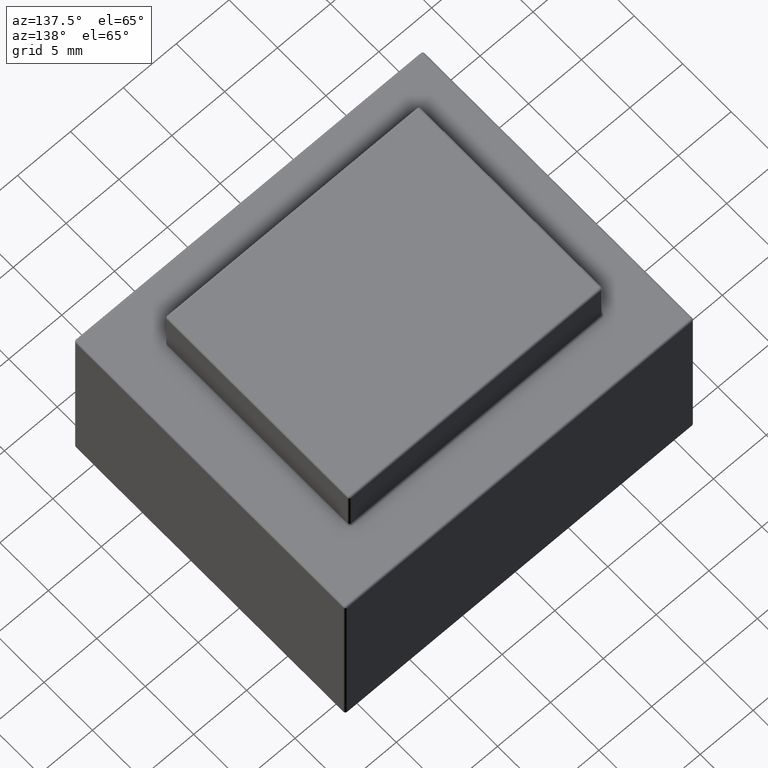
[diagram: clean part render]
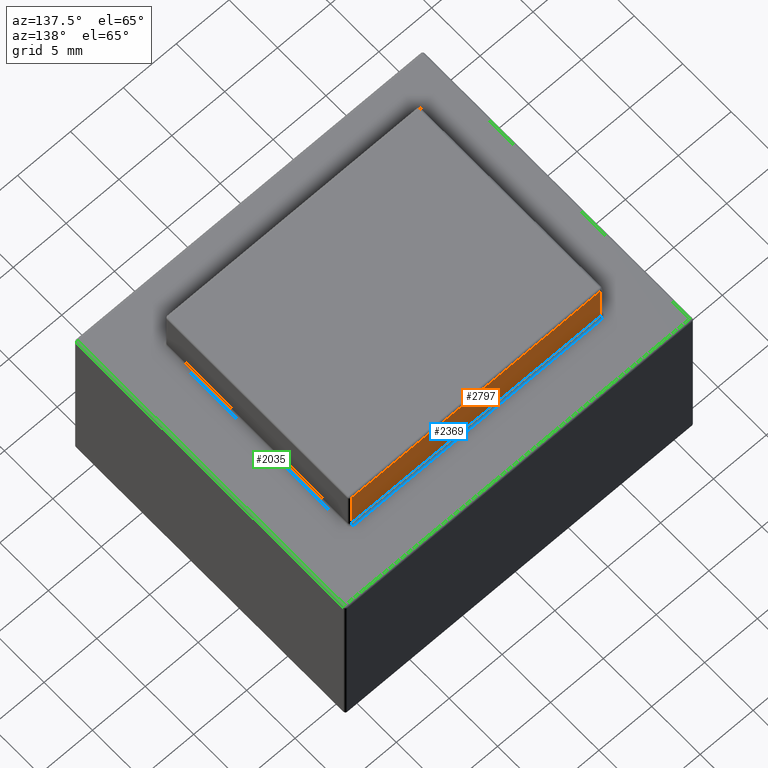
[diagram: same view with three faces highlighted in distinct colors, each labeled with its STEP entity id]
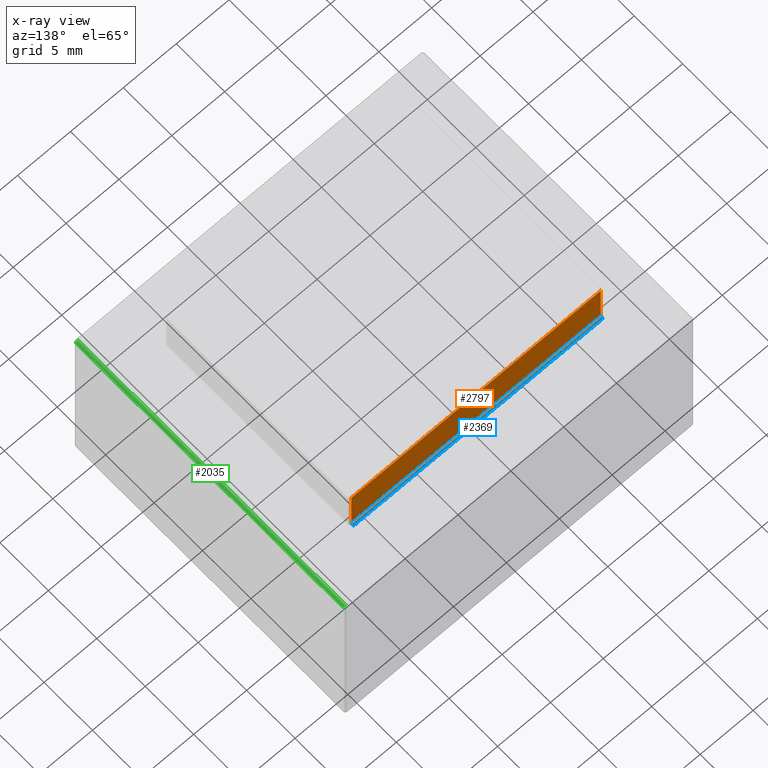
[diagram: x-ray of the same camera — body ghosted, the three highlighted faces saturated]
A machine part, auxiliary view with three faces highlighted in distinct colors.
The next image is the same camera in x-ray (body ghosted, the three faces saturated) — at least one of them is partly hidden behind the body in this view.
Their STEP definitions:

[orange] entity #2797 — the highlighted planar face has unit normal (0, 1, 0).
#2134 = CYLINDRICAL_SURFACE('',#2135,0.2);
#2135 = AXIS2_PLACEMENT_3D('',#2136,#2137,#2138);
#2136 = CARTESIAN_POINT('',(4.5,23.7,17.7));
#2137 = DIRECTION('',(1.,0.,0.));
#2138 = DIRECTION('',(0.,0.,-1.));
#2374 = VERTEX_POINT('',#2375);
#2375 = CARTESIAN_POINT('',(4.7,23.5,17.7));
#2395 = EDGE_CURVE('',#2374,#2396,#2398,.T.);
#2396 = VERTEX_POINT('',#2397);
#2397 = CARTESIAN_POINT('',(28.3,23.5,17.7));
#2398 = SURFACE_CURVE('',#2399,(#2403,#2410),.PCURVE_S1.);
#2399 = LINE('',#2400,#2401);
#2400 = CARTESIAN_POINT('',(4.5,23.5,17.7));
#2401 = VECTOR('',#2402,1.);
#2402 = DIRECTION('',(1.,0.,0.));
#2403 = PCURVE('',#2134,#2404);
#2404 = DEFINITIONAL_REPRESENTATION('',(#2405),#2409);
#2405 = LINE('',#2406,#2407);
#2406 = CARTESIAN_POINT('',(-1.570796326795,0.));
#2407 = VECTOR('',#2408,1.);
#2408 = DIRECTION('',(-0.,1.));
#2409 = ( GEOMETRIC_REPRESENTATION_CONTEXT(2) 
PARAMETRIC_REPRESENTATION_CONTEXT() REPRESENTATION_CONTEXT('2D SPACE',''
  ) );
#2410 = PCURVE('',#2411,#2416);
#2411 = PLANE('',#2412);
#2412 = AXIS2_PLACEMENT_3D('',#2413,#2414,#2415);
#2413 = CARTESIAN_POINT('',(4.5,23.5,17.5));
#2414 = DIRECTION('',(0.,1.,0.));
#2415 = DIRECTION('',(0.,0.,1.));
#2416 = DEFINITIONAL_REPRESENTATION('',(#2417),#2421);
#2417 = LINE('',#2418,#2419);
#2418 = CARTESIAN_POINT('',(0.2,0.));
#2419 = VECTOR('',#2420,1.);
#2420 = DIRECTION('',(0.,1.));
#2421 = ( GEOMETRIC_REPRESENTATION_CONTEXT(2) 
PARAMETRIC_REPRESENTATION_CONTEXT() REPRESENTATION_CONTEXT('2D SPACE',''
  ) );
#2486 = CYLINDRICAL_SURFACE('',#2487,0.2);
#2487 = AXIS2_PLACEMENT_3D('',#2488,#2489,#2490);
#2488 = CARTESIAN_POINT('',(4.7,23.3,17.5));
#2489 = DIRECTION('',(0.,0.,1.));
#2490 = DIRECTION('',(0.,1.,0.));
#2540 = CYLINDRICAL_SURFACE('',#2541,0.2);
#2541 = AXIS2_PLACEMENT_3D('',#2542,#2543,#2544);
#2542 = CARTESIAN_POINT('',(28.3,23.3,17.5));
#2543 = DIRECTION('',(0.,0.,1.));
#2544 = DIRECTION('',(0.,1.,0.));
#2797 = ADVANCED_FACE('',(#2798),#2411,.T.);
#2798 = FACE_BOUND('',#2799,.T.);
#2799 = EDGE_LOOP('',(#2800,#2801,#2824,#2852));
#2800 = ORIENTED_EDGE('',*,*,#2395,.F.);
#2801 = ORIENTED_EDGE('',*,*,#2802,.T.);
#2802 = EDGE_CURVE('',#2374,#2803,#2805,.T.);
#2803 = VERTEX_POINT('',#2804);
#2804 = CARTESIAN_POINT('',(4.7,23.5,21.8));
#2805 = SURFACE_CURVE('',#2806,(#2810,#2817),.PCURVE_S1.);
#2806 = LINE('',#2807,#2808);
#2807 = CARTESIAN_POINT('',(4.7,23.5,17.5));
#2808 = VECTOR('',#2809,1.);
#2809 = DIRECTION('',(0.,0.,1.));
#2810 = PCURVE('',#2411,#2811);
#2811 = DEFINITIONAL_REPRESENTATION('',(#2812),#2816);
#2812 = LINE('',#2813,#2814);
#2813 = CARTESIAN_POINT('',(0.,0.2));
#2814 = VECTOR('',#2815,1.);
#2815 = DIRECTION('',(1.,0.));
#2816 = ( GEOMETRIC_REPRESENTATION_CONTEXT(2) 
PARAMETRIC_REPRESENTATION_CONTEXT() REPRESENTATION_CONTEXT('2D SPACE',''
  ) );
#2817 = PCURVE('',#2486,#2818);
#2818 = DEFINITIONAL_REPRESENTATION('',(#2819),#2823);
#2819 = LINE('',#2820,#2821);
#2820 = CARTESIAN_POINT('',(0.,0.));
#2821 = VECTOR('',#2822,1.);
#2822 = DIRECTION('',(0.,1.));
#2823 = ( GEOMETRIC_REPRESENTATION_CONTEXT(2) 
PARAMETRIC_REPRESENTATION_CONTEXT() REPRESENTATION_CONTEXT('2D SPACE',''
  ) );
#2824 = ORIENTED_EDGE('',*,*,#2825,.T.);
#2825 = EDGE_CURVE('',#2803,#2826,#2828,.T.);
#2826 = VERTEX_POINT('',#2827);
#2827 = CARTESIAN_POINT('',(28.3,23.5,21.8));
#2828 = SURFACE_CURVE('',#2829,(#2833,#2840),.PCURVE_S1.);
#2829 = LINE('',#2830,#2831);
#2830 = CARTESIAN_POINT('',(4.5,23.5,21.8));
#2831 = VECTOR('',#2832,1.);
#2832 = DIRECTION('',(1.,0.,0.));
#2833 = PCURVE('',#2411,#2834);
#2834 = DEFINITIONAL_REPRESENTATION('',(#2835),#2839);
#2835 = LINE('',#2836,#2837);
#2836 = CARTESIAN_POINT('',(4.3,0.));
#2837 = VECTOR('',#2838,1.);
#2838 = DIRECTION('',(0.,1.));
#2839 = ( GEOMETRIC_REPRESENTATION_CONTEXT(2) 
PARAMETRIC_REPRESENTATION_CONTEXT() REPRESENTATION_CONTEXT('2D SPACE',''
  ) );
#2840 = PCURVE('',#2841,#2846);
#2841 = CYLINDRICAL_SURFACE('',#2842,0.2);
#2842 = AXIS2_PLACEMENT_3D('',#2843,#2844,#2845);
#2843 = CARTESIAN_POINT('',(4.5,23.3,21.8));
#2844 = DIRECTION('',(1.,0.,0.));
#2845 = DIRECTION('',(0.,1.,0.));
#2846 = DEFINITIONAL_REPRESENTATION('',(#2847),#2851);
#2847 = LINE('',#2848,#2849);
#2848 = CARTESIAN_POINT('',(0.,0.));
#2849 = VECTOR('',#2850,1.);
#2850 = DIRECTION('',(0.,1.));
#2851 = ( GEOMETRIC_REPRESENTATION_CONTEXT(2) 
PARAMETRIC_REPRESENTATION_CONTEXT() REPRESENTATION_CONTEXT('2D SPACE',''
  ) );
#2852 = ORIENTED_EDGE('',*,*,#2853,.F.);
#2853 = EDGE_CURVE('',#2396,#2826,#2854,.T.);
#2854 = SURFACE_CURVE('',#2855,(#2859,#2866),.PCURVE_S1.);
#2855 = LINE('',#2856,#2857);
#2856 = CARTESIAN_POINT('',(28.3,23.5,17.5));
#2857 = VECTOR('',#2858,1.);
#2858 = DIRECTION('',(0.,0.,1.));
#2859 = PCURVE('',#2411,#2860);
#2860 = DEFINITIONAL_REPRESENTATION('',(#2861),#2865);
#2861 = LINE('',#2862,#2863);
#2862 = CARTESIAN_POINT('',(0.,23.8));
#2863 = VECTOR('',#2864,1.);
#2864 = DIRECTION('',(1.,0.));
#2865 = ( GEOMETRIC_REPRESENTATION_CONTEXT(2) 
PARAMETRIC_REPRESENTATION_CONTEXT() REPRESENTATION_CONTEXT('2D SPACE',''
  ) );
#2866 = PCURVE('',#2540,#2867);
#2867 = DEFINITIONAL_REPRESENTATION('',(#2868),#2872);
#2868 = LINE('',#2869,#2870);
#2869 = CARTESIAN_POINT('',(-0.,0.));
#2870 = VECTOR('',#2871,1.);
#2871 = DIRECTION('',(-0.,1.));
#2872 = ( GEOMETRIC_REPRESENTATION_CONTEXT(2) 
PARAMETRIC_REPRESENTATION_CONTEXT() REPRESENTATION_CONTEXT('2D SPACE',''
  ) );

[blue] entity #2369 — the highlighted cylindrical surface (edge-blend (fillet) strip) has radius 0.2 mm, axis along (1, 0, 0).
#1770 = PLANE('',#1771);
#1771 = AXIS2_PLACEMENT_3D('',#1772,#1773,#1774);
#1772 = CARTESIAN_POINT('',(0.,0.,17.5));
#1773 = DIRECTION('',(0.,0.,1.));
#1774 = DIRECTION('',(1.,0.,0.));
#2116 = EDGE_CURVE('',#2117,#2119,#2121,.T.);
#2117 = VERTEX_POINT('',#2118);
#2118 = CARTESIAN_POINT('',(4.7,23.7,17.5));
#2119 = VERTEX_POINT('',#2120);
#2120 = CARTESIAN_POINT('',(28.3,23.7,17.5));
#2121 = SURFACE_CURVE('',#2122,(#2126,#2133),.PCURVE_S1.);
#2122 = LINE('',#2123,#2124);
#2123 = CARTESIAN_POINT('',(4.5,23.7,17.5));
#2124 = VECTOR('',#2125,1.);
#2125 = DIRECTION('',(1.,0.,0.));
#2126 = PCURVE('',#1770,#2127);
#2127 = DEFINITIONAL_REPRESENTATION('',(#2128),#2132);
#2128 = LINE('',#2129,#2130);
#2129 = CARTESIAN_POINT('',(4.5,23.7));
#2130 = VECTOR('',#2131,1.);
#2131 = DIRECTION('',(1.,0.));
#2132 = ( GEOMETRIC_REPRESENTATION_CONTEXT(2) 
PARAMETRIC_REPRESENTATION_CONTEXT() REPRESENTATION_CONTEXT('2D SPACE',''
  ) );
#2133 = PCURVE('',#2134,#2139);
#2134 = CYLINDRICAL_SURFACE('',#2135,0.2);
#2135 = AXIS2_PLACEMENT_3D('',#2136,#2137,#2138);
#2136 = CARTESIAN_POINT('',(4.5,23.7,17.7));
#2137 = DIRECTION('',(1.,0.,0.));
#2138 = DIRECTION('',(0.,0.,-1.));
#2139 = DEFINITIONAL_REPRESENTATION('',(#2140),#2144);
#2140 = LINE('',#2141,#2142);
#2141 = CARTESIAN_POINT('',(-0.,0.));
#2142 = VECTOR('',#2143,1.);
#2143 = DIRECTION('',(-0.,1.));
#2144 = ( GEOMETRIC_REPRESENTATION_CONTEXT(2) 
PARAMETRIC_REPRESENTATION_CONTEXT() REPRESENTATION_CONTEXT('2D SPACE',''
  ) );
#2167 = TOROIDAL_SURFACE('',#2168,0.4,0.2);
#2168 = AXIS2_PLACEMENT_3D('',#2169,#2170,#2171);
#2169 = CARTESIAN_POINT('',(28.3,23.3,17.7));
#2170 = DIRECTION('',(-0.,-0.,-1.));
#2171 = DIRECTION('',(0.,1.,0.));
#2340 = TOROIDAL_SURFACE('',#2341,0.4,0.2);
#2341 = AXIS2_PLACEMENT_3D('',#2342,#2343,#2344);
#2342 = CARTESIAN_POINT('',(4.7,23.3,17.7));
#2343 = DIRECTION('',(-0.,-0.,-1.));
#2344 = DIRECTION('',(0.,1.,0.));
#2369 = ADVANCED_FACE('',(#2370),#2134,.F.);
#2370 = FACE_BOUND('',#2371,.T.);
#2371 = EDGE_LOOP('',(#2372,#2394,#2422,#2442));
#2372 = ORIENTED_EDGE('',*,*,#2373,.T.);
#2373 = EDGE_CURVE('',#2117,#2374,#2376,.T.);
#2374 = VERTEX_POINT('',#2375);
#2375 = CARTESIAN_POINT('',(4.7,23.5,17.7));
#2376 = SURFACE_CURVE('',#2377,(#2382,#2388),.PCURVE_S1.);
#2377 = CIRCLE('',#2378,0.2);
#2378 = AXIS2_PLACEMENT_3D('',#2379,#2380,#2381);
#2379 = CARTESIAN_POINT('',(4.7,23.7,17.7));
#2380 = DIRECTION('',(-1.,0.,0.));
#2381 = DIRECTION('',(0.,1.,0.));
#2382 = PCURVE('',#2134,#2383);
#2383 = DEFINITIONAL_REPRESENTATION('',(#2384),#2387);
#2384 = B_SPLINE_CURVE_WITH_KNOTS('',1,(#2385,#2386),.UNSPECIFIED.,.F.,
  .F.,(2,2),(1.570796326795,3.14159265359),.PIECEWISE_BEZIER_KNOTS.);
#2385 = CARTESIAN_POINT('',(0.,0.2));
#2386 = CARTESIAN_POINT('',(-1.570796326795,0.2));
#2387 = ( GEOMETRIC_REPRESENTATION_CONTEXT(2) 
PARAMETRIC_REPRESENTATION_CONTEXT() REPRESENTATION_CONTEXT('2D SPACE',''
  ) );
#2388 = PCURVE('',#2340,#2389);
#2389 = DEFINITIONAL_REPRESENTATION('',(#2390),#2393);
#2390 = B_SPLINE_CURVE_WITH_KNOTS('',1,(#2391,#2392),.UNSPECIFIED.,.F.,
  .F.,(2,2),(1.570796326795,3.14159265359),.PIECEWISE_BEZIER_KNOTS.);
#2391 = CARTESIAN_POINT('',(0.,1.570796326795));
#2392 = CARTESIAN_POINT('',(0.,3.14159265359));
#2393 = ( GEOMETRIC_REPRESENTATION_CONTEXT(2) 
PARAMETRIC_REPRESENTATION_CONTEXT() REPRESENTATION_CONTEXT('2D SPACE',''
  ) );
#2394 = ORIENTED_EDGE('',*,*,#2395,.T.);
#2395 = EDGE_CURVE('',#2374,#2396,#2398,.T.);
#2396 = VERTEX_POINT('',#2397);
#2397 = CARTESIAN_POINT('',(28.3,23.5,17.7));
#2398 = SURFACE_CURVE('',#2399,(#2403,#2410),.PCURVE_S1.);
#2399 = LINE('',#2400,#2401);
#2400 = CARTESIAN_POINT('',(4.5,23.5,17.7));
#2401 = VECTOR('',#2402,1.);
#2402 = DIRECTION('',(1.,0.,0.));
#2403 = PCURVE('',#2134,#2404);
#2404 = DEFINITIONAL_REPRESENTATION('',(#2405),#2409);
#2405 = LINE('',#2406,#2407);
#2406 = CARTESIAN_POINT('',(-1.570796326795,0.));
#2407 = VECTOR('',#2408,1.);
#2408 = DIRECTION('',(-0.,1.));
#2409 = ( GEOMETRIC_REPRESENTATION_CONTEXT(2) 
PARAMETRIC_REPRESENTATION_CONTEXT() REPRESENTATION_CONTEXT('2D SPACE',''
  ) );
#2410 = PCURVE('',#2411,#2416);
#2411 = PLANE('',#2412);
#2412 = AXIS2_PLACEMENT_3D('',#2413,#2414,#2415);
#2413 = CARTESIAN_POINT('',(4.5,23.5,17.5));
#2414 = DIRECTION('',(0.,1.,0.));
#2415 = DIRECTION('',(0.,0.,1.));
#2416 = DEFINITIONAL_REPRESENTATION('',(#2417),#2421);
#2417 = LINE('',#2418,#2419);
#2418 = CARTESIAN_POINT('',(0.2,0.));
#2419 = VECTOR('',#2420,1.);
#2420 = DIRECTION('',(0.,1.));
#2421 = ( GEOMETRIC_REPRESENTATION_CONTEXT(2) 
PARAMETRIC_REPRESENTATION_CONTEXT() REPRESENTATION_CONTEXT('2D SPACE',''
  ) );
#2422 = ORIENTED_EDGE('',*,*,#2423,.F.);
#2423 = EDGE_CURVE('',#2119,#2396,#2424,.T.);
#2424 = SURFACE_CURVE('',#2425,(#2430,#2436),.PCURVE_S1.);
#2425 = CIRCLE('',#2426,0.2);
#2426 = AXIS2_PLACEMENT_3D('',#2427,#2428,#2429);
#2427 = CARTESIAN_POINT('',(28.3,23.7,17.7));
#2428 = DIRECTION('',(-1.,0.,0.));
#2429 = DIRECTION('',(0.,1.,0.));
#2430 = PCURVE('',#2134,#2431);
#2431 = DEFINITIONAL_REPRESENTATION('',(#2432),#2435);
#2432 = B_SPLINE_CURVE_WITH_KNOTS('',1,(#2433,#2434),.UNSPECIFIED.,.F.,
  .F.,(2,2),(1.570796326795,3.14159265359),.PIECEWISE_BEZIER_KNOTS.);
#2433 = CARTESIAN_POINT('',(0.,23.8));
#2434 = CARTESIAN_POINT('',(-1.570796326795,23.8));
#2435 = ( GEOMETRIC_REPRESENTATION_CONTEXT(2) 
PARAMETRIC_REPRESENTATION_CONTEXT() REPRESENTATION_CONTEXT('2D SPACE',''
  ) );
#2436 = PCURVE('',#2167,#2437);
#2437 = DEFINITIONAL_REPRESENTATION('',(#2438),#2441);
#2438 = B_SPLINE_CURVE_WITH_KNOTS('',1,(#2439,#2440),.UNSPECIFIED.,.F.,
  .F.,(2,2),(1.570796326795,3.14159265359),.PIECEWISE_BEZIER_KNOTS.);
#2439 = CARTESIAN_POINT('',(0.,1.570796326795));
#2440 = CARTESIAN_POINT('',(0.,3.14159265359));
#2441 = ( GEOMETRIC_REPRESENTATION_CONTEXT(2) 
PARAMETRIC_REPRESENTATION_CONTEXT() REPRESENTATION_CONTEXT('2D SPACE',''
  ) );
#2442 = ORIENTED_EDGE('',*,*,#2116,.F.);

[green] entity #2035 — the highlighted cylindrical surface (edge-blend (fillet) strip) has radius 0.2 mm, axis along (0, 1, 0).
#759 = PLANE('',#760);
#760 = AXIS2_PLACEMENT_3D('',#761,#762,#763);
#761 = CARTESIAN_POINT('',(33.,0.,0.));
#762 = DIRECTION('',(1.,0.,0.));
#763 = DIRECTION('',(0.,0.,1.));
#1592 = VERTEX_POINT('',#1593);
#1593 = CARTESIAN_POINT('',(33.,0.2,17.3));
#1616 = VERTEX_POINT('',#1617);
#1617 = CARTESIAN_POINT('',(33.,27.8,17.3));
#1638 = EDGE_CURVE('',#1592,#1616,#1639,.T.);
#1639 = SURFACE_CURVE('',#1640,(#1644,#1651),.PCURVE_S1.);
#1640 = LINE('',#1641,#1642);
#1641 = CARTESIAN_POINT('',(33.,0.,17.3));
#1642 = VECTOR('',#1643,1.);
#1643 = DIRECTION('',(0.,1.,0.));
#1644 = PCURVE('',#759,#1645);
#1645 = DEFINITIONAL_REPRESENTATION('',(#1646),#1650);
#1646 = LINE('',#1647,#1648);
#1647 = CARTESIAN_POINT('',(17.3,0.));
#1648 = VECTOR('',#1649,1.);
#1649 = DIRECTION('',(0.,-1.));
#1650 = ( GEOMETRIC_REPRESENTATION_CONTEXT(2) 
PARAMETRIC_REPRESENTATION_CONTEXT() REPRESENTATION_CONTEXT('2D SPACE',''
  ) );
#1651 = PCURVE('',#1652,#1657);
#1652 = CYLINDRICAL_SURFACE('',#1653,0.2);
#1653 = AXIS2_PLACEMENT_3D('',#1654,#1655,#1656);
#1654 = CARTESIAN_POINT('',(32.8,0.,17.3));
#1655 = DIRECTION('',(0.,1.,0.));
#1656 = DIRECTION('',(0.,0.,1.));
#1657 = DEFINITIONAL_REPRESENTATION('',(#1658),#1662);
#1658 = LINE('',#1659,#1660);
#1659 = CARTESIAN_POINT('',(1.570796326795,0.));
#1660 = VECTOR('',#1661,1.);
#1661 = DIRECTION('',(0.,1.));
#1662 = ( GEOMETRIC_REPRESENTATION_CONTEXT(2) 
PARAMETRIC_REPRESENTATION_CONTEXT() REPRESENTATION_CONTEXT('2D SPACE',''
  ) );
#1770 = PLANE('',#1771);
#1771 = AXIS2_PLACEMENT_3D('',#1772,#1773,#1774);
#1772 = CARTESIAN_POINT('',(0.,0.,17.5));
#1773 = DIRECTION('',(0.,0.,1.));
#1774 = DIRECTION('',(1.,0.,0.));
#1860 = VERTEX_POINT('',#1861);
#1861 = CARTESIAN_POINT('',(32.8,0.2,17.5));
#1896 = SPHERICAL_SURFACE('',#1897,0.2);
#1897 = AXIS2_PLACEMENT_3D('',#1898,#1899,#1900);
#1898 = CARTESIAN_POINT('',(32.8,0.2,17.3));
#1899 = DIRECTION('',(-0.,-0.,-1.));
#1900 = DIRECTION('',(0.,-1.,0.));
#1961 = VERTEX_POINT('',#1962);
#1962 = CARTESIAN_POINT('',(32.8,27.8,17.5));
#1977 = SPHERICAL_SURFACE('',#1978,0.2);
#1978 = AXIS2_PLACEMENT_3D('',#1979,#1980,#1981);
#1979 = CARTESIAN_POINT('',(32.8,27.8,17.3));
#1980 = DIRECTION('',(-1.,0.,0.));
#1981 = DIRECTION('',(0.,0.,1.));
#2035 = ADVANCED_FACE('',(#2036),#1652,.T.);
#2036 = FACE_BOUND('',#2037,.T.);
#2037 = EDGE_LOOP('',(#2038,#2058,#2059,#2079));
#2038 = ORIENTED_EDGE('',*,*,#2039,.T.);
#2039 = EDGE_CURVE('',#1860,#1592,#2040,.T.);
#2040 = SURFACE_CURVE('',#2041,(#2046,#2052),.PCURVE_S1.);
#2041 = CIRCLE('',#2042,0.2);
#2042 = AXIS2_PLACEMENT_3D('',#2043,#2044,#2045);
#2043 = CARTESIAN_POINT('',(32.8,0.2,17.3));
#2044 = DIRECTION('',(6.123233995737E-17,1.,0.));
#2045 = DIRECTION('',(1.,-6.123233995737E-17,0.));
#2046 = PCURVE('',#1652,#2047);
#2047 = DEFINITIONAL_REPRESENTATION('',(#2048),#2051);
#2048 = B_SPLINE_CURVE_WITH_KNOTS('',1,(#2049,#2050),.UNSPECIFIED.,.F.,
  .F.,(2,2),(4.712388980385,6.28318530718),.PIECEWISE_BEZIER_KNOTS.);
#2049 = CARTESIAN_POINT('',(0.,0.2));
#2050 = CARTESIAN_POINT('',(1.570796326795,0.2));
#2051 = ( GEOMETRIC_REPRESENTATION_CONTEXT(2) 
PARAMETRIC_REPRESENTATION_CONTEXT() REPRESENTATION_CONTEXT('2D SPACE',''
  ) );
#2052 = PCURVE('',#1896,#2053);
#2053 = DEFINITIONAL_REPRESENTATION('',(#2054),#2057);
#2054 = B_SPLINE_CURVE_WITH_KNOTS('',1,(#2055,#2056),.UNSPECIFIED.,.F.,
  .F.,(2,2),(4.712388980385,6.28318530718),.PIECEWISE_BEZIER_KNOTS.);
#2055 = CARTESIAN_POINT('',(-1.570796326795,-1.570796326795));
#2056 = CARTESIAN_POINT('',(-1.570796326795,0.));
#2057 = ( GEOMETRIC_REPRESENTATION_CONTEXT(2) 
PARAMETRIC_REPRESENTATION_CONTEXT() REPRESENTATION_CONTEXT('2D SPACE',''
  ) );
#2058 = ORIENTED_EDGE('',*,*,#1638,.T.);
#2059 = ORIENTED_EDGE('',*,*,#2060,.T.);
#2060 = EDGE_CURVE('',#1616,#1961,#2061,.T.);
#2061 = SURFACE_CURVE('',#2062,(#2067,#2073),.PCURVE_S1.);
#2062 = CIRCLE('',#2063,0.2);
#2063 = AXIS2_PLACEMENT_3D('',#2064,#2065,#2066);
#2064 = CARTESIAN_POINT('',(32.8,27.8,17.3));
#2065 = DIRECTION('',(0.,-1.,0.));
#2066 = DIRECTION('',(0.,0.,1.));
#2067 = PCURVE('',#1652,#2068);
#2068 = DEFINITIONAL_REPRESENTATION('',(#2069),#2072);
#2069 = B_SPLINE_CURVE_WITH_KNOTS('',1,(#2070,#2071),.UNSPECIFIED.,.F.,
  .F.,(2,2),(4.712388980385,6.28318530718),.PIECEWISE_BEZIER_KNOTS.);
#2070 = CARTESIAN_POINT('',(1.570796326795,27.8));
#2071 = CARTESIAN_POINT('',(0.,27.8));
#2072 = ( GEOMETRIC_REPRESENTATION_CONTEXT(2) 
PARAMETRIC_REPRESENTATION_CONTEXT() REPRESENTATION_CONTEXT('2D SPACE',''
  ) );
#2073 = PCURVE('',#1977,#2074);
#2074 = DEFINITIONAL_REPRESENTATION('',(#2075),#2078);
#2075 = B_SPLINE_CURVE_WITH_KNOTS('',1,(#2076,#2077),.UNSPECIFIED.,.F.,
  .F.,(2,2),(4.712388980385,6.28318530718),.PIECEWISE_BEZIER_KNOTS.);
#2076 = CARTESIAN_POINT('',(0.,-1.570796326795));
#2077 = CARTESIAN_POINT('',(0.,0.));
#2078 = ( GEOMETRIC_REPRESENTATION_CONTEXT(2) 
PARAMETRIC_REPRESENTATION_CONTEXT() REPRESENTATION_CONTEXT('2D SPACE',''
  ) );
#2079 = ORIENTED_EDGE('',*,*,#2080,.F.);
#2080 = EDGE_CURVE('',#1860,#1961,#2081,.T.);
#2081 = SURFACE_CURVE('',#2082,(#2086,#2093),.PCURVE_S1.);
#2082 = LINE('',#2083,#2084);
#2083 = CARTESIAN_POINT('',(32.8,0.,17.5));
#2084 = VECTOR('',#2085,1.);
#2085 = DIRECTION('',(0.,1.,0.));
#2086 = PCURVE('',#1652,#2087);
#2087 = DEFINITIONAL_REPRESENTATION('',(#2088),#2092);
#2088 = LINE('',#2089,#2090);
#2089 = CARTESIAN_POINT('',(0.,0.));
#2090 = VECTOR('',#2091,1.);
#2091 = DIRECTION('',(0.,1.));
#2092 = ( GEOMETRIC_REPRESENTATION_CONTEXT(2) 
PARAMETRIC_REPRESENTATION_CONTEXT() REPRESENTATION_CONTEXT('2D SPACE',''
  ) );
#2093 = PCURVE('',#1770,#2094);
#2094 = DEFINITIONAL_REPRESENTATION('',(#2095),#2099);
#2095 = LINE('',#2096,#2097);
#2096 = CARTESIAN_POINT('',(32.8,0.));
#2097 = VECTOR('',#2098,1.);
#2098 = DIRECTION('',(0.,1.));
#2099 = ( GEOMETRIC_REPRESENTATION_CONTEXT(2) 
PARAMETRIC_REPRESENTATION_CONTEXT() REPRESENTATION_CONTEXT('2D SPACE',''
  ) );